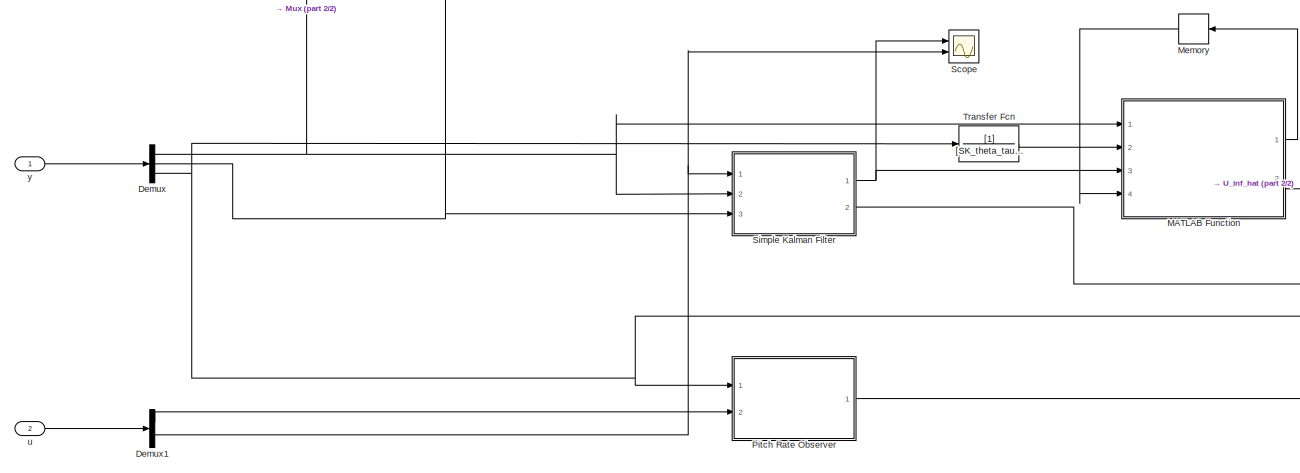
[diagram: root canvas - part 1/2, center side, full height]
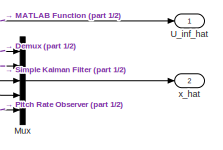
[diagram: root canvas - part 2/2, middle right region]
MODEL slx_cbee14944cd3
KIND model
CONFIG AbsTol = auto
CONFIG EnableMultiTasking = off
CONFIG FixedStep = DT
CONFIG MaxStep = auto
CONFIG MinStep = auto
CONFIG RelTol = 1e-3
CONFIG SampleTimeConstraint = Unconstrained
CONFIG SolverName = FixedStepAuto
CONFIG StartTime = 0.0
CONFIG StopTime = TMax
BLOCK [Demux] Demux
  Outputs = 3
  Ports = [1, 3]
BLOCK [Demux] Demux1
  Outputs = 2
  Ports = [1, 2]
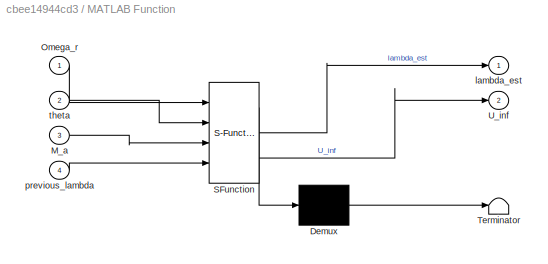
BLOCK [SubSystem] MATLAB Function
  ErrorFcn = Stateflow.Translate.translate
  PermitHierarchicalResolution = ExplicitOnly
  Ports = [4, 2]
  RequestExecContextInheritance = off
  SFBlockType = MATLAB Function
  TreatAsAtomicUnit = on
BLOCK [Demux] MATLAB Function/ Demux 
  Outputs = 1
  Ports = [1, 1]
BLOCK [S-Function] MATLAB Function/ SFunction 
  EnableBusSupport = on
  FunctionName = sf_sfun
  Parameters = CP,CP_lambda_grid,CP_theta_grid,SK_R,SK_lambda_0,SK_rho
  PortCounts = [4 3]
  Ports = [4, 3]
  SFcnIsStateOwnerBlock = off
  SFunctionDeploymentMode = off
  Tag = Stateflow S-Function 3
BLOCK [Terminator] MATLAB Function/ Terminator 
BLOCK [Inport] MATLAB Function/M_a
  Port = 3
BLOCK [Inport] MATLAB Function/Omega_r
BLOCK [Outport] MATLAB Function/U_inf
  Port = 2
BLOCK [Outport] MATLAB Function/lambda_est
BLOCK [Inport] MATLAB Function/previous_lambda
  Port = 4
BLOCK [Inport] MATLAB Function/theta
  Port = 2
BLOCK [Memory] Memory
  InitialCondition = SK_lambda_0
  NameLocation = top
BLOCK [Mux] Mux
  DisplayOption = bar
  Inputs = 5
  Ports = [5, 1]
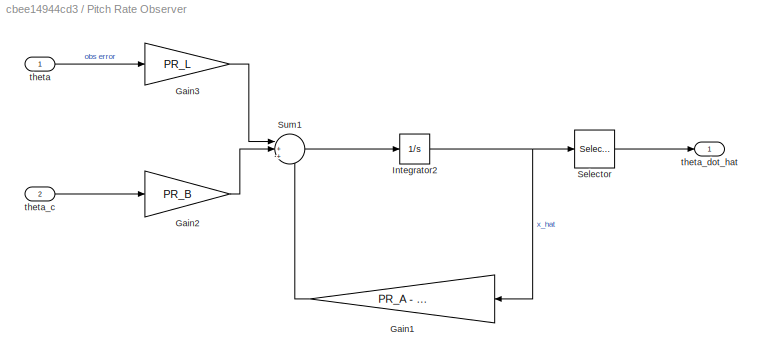
BLOCK [SubSystem] Pitch Rate Observer
  Ports = [2, 1]
  RequestExecContextInheritance = off
  TreatAsAtomicUnit = on
BLOCK [Gain] Pitch Rate Observer/Gain1
  Gain = PR_A - PR_L*PR_C
  Multiplication = Matrix(K*u)
  NameLocation = top
BLOCK [Gain] Pitch Rate Observer/Gain2
  Gain = PR_B
BLOCK [Gain] Pitch Rate Observer/Gain3
  Gain = PR_L
BLOCK [Integrator] Pitch Rate Observer/Integrator2
  InitialCondition = PR_theta0
  Ports = [1, 1]
BLOCK [Selector] Pitch Rate Observer/Selector
  IndexOptions = Index vector (dialog)
  Indices = [2]
  InputPortWidth = 2
  OutputSizes = 1
  Ports = [1, 1]
BLOCK [Sum] Pitch Rate Observer/Sum1
  Inputs = |+++
  Ports = [3, 1]
BLOCK [Inport] Pitch Rate Observer/theta
BLOCK [Inport] Pitch Rate Observer/theta_c
  Port = 2
BLOCK [Outport] Pitch Rate Observer/theta_dot_hat
BLOCK [Scope] Scope
  Floating = off
  NumInputPorts = 2
  Ports = [2]
  ScopeSpecificationString = Simulink.scopes.TimeScopeBlockCfg('CurrentConfiguration', extmgr.ConfigurationSet(extmgr.Configuration('Core','General UI',true),extmgr.Configuration('Core','Source UI',true),extmgr.Configuration('Sources','WiredSimulink',true),extmgr.Configuration('Visuals','Time Domain',true,'SerializedDisplays',{struct('MinYLimReal','3.5175','MaxYLimReal','4.31982','YLabelReal','','MinYLimMag','3.5175','MaxYLim...<+1453ch>
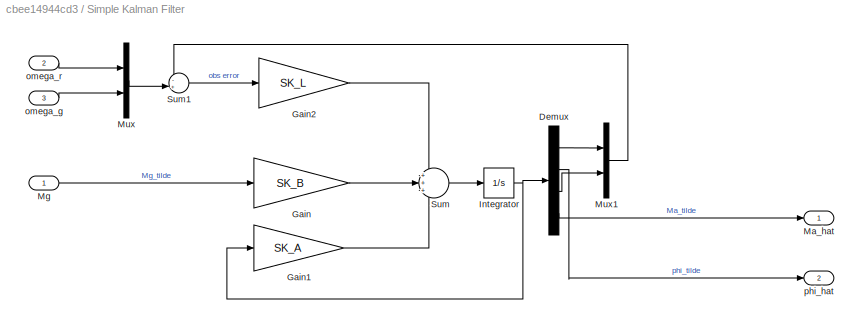
BLOCK [SubSystem] Simple Kalman Filter
  Ports = [3, 2]
  RequestExecContextInheritance = off
  TreatAsAtomicUnit = on
BLOCK [Demux] Simple Kalman Filter/Demux
  Ports = [1, 4]
BLOCK [Gain] Simple Kalman Filter/Gain
  Gain = SK_B
  Multiplication = Matrix(K*u) (u vector)
BLOCK [Gain] Simple Kalman Filter/Gain1
  Gain = SK_A
  Multiplication = Matrix(K*u) (u vector)
BLOCK [Gain] Simple Kalman Filter/Gain2
  Gain = SK_L
  Multiplication = Matrix(K*u) (u vector)
BLOCK [Integrator] Simple Kalman Filter/Integrator
  InitialCondition = SK_x0
  Ports = [1, 1]
BLOCK [Outport] Simple Kalman Filter/Ma_hat
BLOCK [Inport] Simple Kalman Filter/Mg
BLOCK [Mux] Simple Kalman Filter/Mux
  DisplayOption = bar
  Inputs = 2
  Ports = [2, 1]
BLOCK [Mux] Simple Kalman Filter/Mux1
  DisplayOption = bar
  Inputs = 2
  Ports = [2, 1]
BLOCK [Sum] Simple Kalman Filter/Sum
  Inputs = +++
  Ports = [3, 1]
BLOCK [Sum] Simple Kalman Filter/Sum1
  Inputs = -+|
  Ports = [2, 1]
BLOCK [Inport] Simple Kalman Filter/omega_g
  Port = 3
BLOCK [Inport] Simple Kalman Filter/omega_r
  Port = 2
BLOCK [Outport] Simple Kalman Filter/phi_hat
  Port = 2
BLOCK [TransferFcn] Transfer Fcn
  Denominator = [SK_theta_tau 1]
BLOCK [Outport] U_inf_hat
  PortDimensions = 1
BLOCK [Inport] u
  Port = 2
  PortDimensions = [2 1]
BLOCK [Outport] x_hat
  Port = 2
  PortDimensions = [5 1]
BLOCK [Inport] y
  PortDimensions = [3 1]
LINE Demux1:1 -> Pitch Rate Observer:2
NET Demux1:2 -> Scope:2, Simple Kalman Filter:1
NET Demux:1 -> MATLAB Function:1, Mux:1, Simple Kalman Filter:2
NET Demux:2 -> Mux:3, Simple Kalman Filter:3
NET Demux:3 -> Mux:4, Pitch Rate Observer:1, Transfer Fcn:1
LINE MATLAB Function:1 -> Memory:1
LINE MATLAB Function:2 -> U_inf_hat:1
LINE Memory:1 -> MATLAB Function:4
LINE Mux:1 -> x_hat:1
LINE Pitch Rate Observer/Gain1:1 -> Pitch Rate Observer/Sum1:3
LINE Pitch Rate Observer/Gain2:1 -> Pitch Rate Observer/Sum1:2
LINE Pitch Rate Observer/Gain3:1 -> Pitch Rate Observer/Sum1:1
NET Pitch Rate Observer/Integrator2:1 -> Pitch Rate Observer/Gain1:1, Pitch Rate Observer/Selector:1
LINE Pitch Rate Observer/Selector:1 -> Pitch Rate Observer/theta_dot_hat:1
LINE Pitch Rate Observer/Sum1:1 -> Pitch Rate Observer/Integrator2:1
LINE Pitch Rate Observer/theta:1 -> Pitch Rate Observer/Gain3:1
LINE Pitch Rate Observer/theta_c:1 -> Pitch Rate Observer/Gain2:1
LINE Pitch Rate Observer:1 -> Mux:5
LINE Simple Kalman Filter/Demux:1 -> Simple Kalman Filter/Mux1:1
LINE Simple Kalman Filter/Demux:2 -> Simple Kalman Filter/phi_hat:1
LINE Simple Kalman Filter/Demux:3 -> Simple Kalman Filter/Mux1:2
LINE Simple Kalman Filter/Demux:4 -> Simple Kalman Filter/Ma_hat:1
LINE Simple Kalman Filter/Gain1:1 -> Simple Kalman Filter/Sum:3
LINE Simple Kalman Filter/Gain2:1 -> Simple Kalman Filter/Sum:1
LINE Simple Kalman Filter/Gain:1 -> Simple Kalman Filter/Sum:2
NET Simple Kalman Filter/Integrator:1 -> Simple Kalman Filter/Demux:1, Simple Kalman Filter/Gain1:1
LINE Simple Kalman Filter/Mg:1 -> Simple Kalman Filter/Gain:1
LINE Simple Kalman Filter/Mux1:1 -> Simple Kalman Filter/Sum1:1
LINE Simple Kalman Filter/Mux:1 -> Simple Kalman Filter/Sum1:2
LINE Simple Kalman Filter/Sum1:1 -> Simple Kalman Filter/Gain2:1
LINE Simple Kalman Filter/Sum:1 -> Simple Kalman Filter/Integrator:1
LINE Simple Kalman Filter/omega_g:1 -> Simple Kalman Filter/Mux:2
LINE Simple Kalman Filter/omega_r:1 -> Simple Kalman Filter/Mux:1
NET Simple Kalman Filter:1 -> MATLAB Function:3, Scope:1
LINE Simple Kalman Filter:2 -> Mux:2
LINE Transfer Fcn:1 -> MATLAB Function:2
LINE u:1 -> Demux1:1
LINE y:1 -> Demux:1
note: NET lines group one-source signal fan-out (src -> all destinations, sorted); 1:1 wires keep LINE
CHART MATLAB Function states=1 transitions=1
  STATE_LABEL 'eML_blk_kernel()'
  STATE_LABEL 'SCRIPT:\n% Computes the windspeed using a secant method with given torque\n% estimation, rotor speed, and blade pitch angle\nfunction [lambda_est, U_inf] = torque_to_windspeed(Omega_r, theta, M_a, previous_lambda, SK_rho, SK_R, SK_lambda_0, CP, CP_theta_grid, CP_lambda_grid)\n\n    theta = max(theta, 0);\n\n    % constant in the equation Cp/lambda^3 = C\n    C = 2000000*M_a/(SK_rho*pi*(SK_R)^5*(Omega_r)^2...<+507ch>'
CHART  states=0 transitions=0
